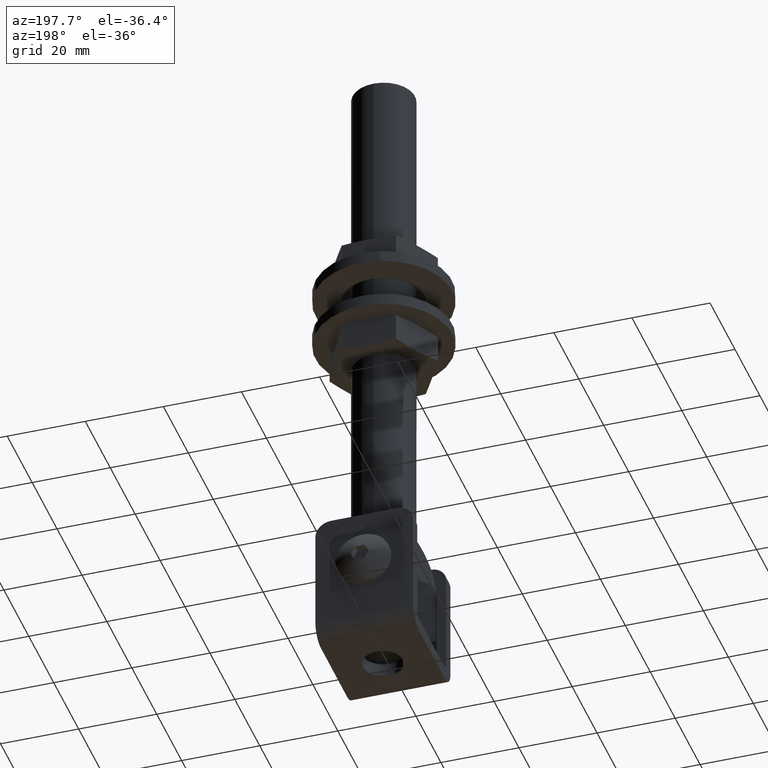
[diagram: clean part render]
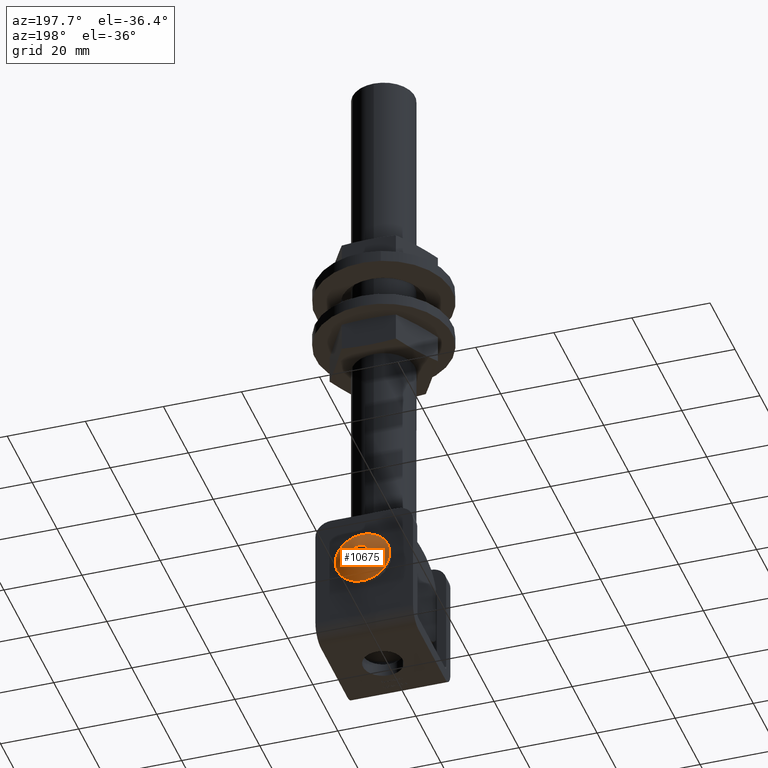
[diagram: same view with one face highlighted and labeled with its STEP entity id]
A machine part, auxiliary view. The second image highlights one B-rep face of the part: STEP entity #10675.
In plain terms, the highlighted spherical surface has radius 11.05 mm.
Its self-contained STEP definition (entity closure, byte-faithful):
#61 = CARTESIAN_POINT ( 'NONE',  ( -1.154700538379252350, 15.75597828364774067, -2.000000000000000000 ) ) ;
#476 = CARTESIAN_POINT ( 'NONE',  ( 1.154700538379251240, 15.75597828364774067, 2.000000000000001776 ) ) ;
#1130 = CARTESIAN_POINT ( 'NONE',  ( 0.000000000000000000, 4.950000000000002842, 0.000000000000000000 ) ) ;
#1547 = AXIS2_PLACEMENT_3D ( 'NONE', #2877, #12079, #12256 ) ;
#1617 = ORIENTED_EDGE ( 'NONE', *, *, #7392, .F. ) ;
#1966 = CIRCLE ( 'NONE', #11999, 10.86749741200796926 ) ;
#2010 = CARTESIAN_POINT ( 'NONE',  ( 0.000000000000000000, 13.49999999999999822, 0.000000000000000000 ) ) ;
#2491 = EDGE_LOOP ( 'NONE', ( #12122 ) ) ;
#2877 = CARTESIAN_POINT ( 'NONE',  ( -1.732050807568877637, 4.950000000000002842, 0.9999999999999995559 ) ) ;
#3056 = FACE_OUTER_BOUND ( 'NONE', #4974, .T. ) ;
#3228 = CARTESIAN_POINT ( 'NONE',  ( 1.154700538379250796, 15.75597828364774067, -2.000000000000000888 ) ) ;
#3642 = ORIENTED_EDGE ( 'NONE', *, *, #4127, .F. ) ;
#3908 = EDGE_CURVE ( 'NONE', #5907, #12906, #11746, .T. ) ;
#4127 = EDGE_CURVE ( 'NONE', #13528, #11460, #16472, .T. ) ;
#4194 = DIRECTION ( 'NONE',  ( -0.5000000000000001110, 9.737120518442653529E-15, -0.8660254037844384856 ) ) ;
#4286 = AXIS2_PLACEMENT_3D ( 'NONE', #15820, #6781, #4194 ) ;
#4408 = EDGE_CURVE ( 'NONE', #11460, #5907, #1966, .T. ) ;
#4578 = CARTESIAN_POINT ( 'NONE',  ( -1.732050807568878525, 4.950000000000002842, -1.000000000000000000 ) ) ;
#4805 = ORIENTED_EDGE ( 'NONE', *, *, #3908, .F. ) ;
#4851 = VERTEX_POINT ( 'NONE', #476 ) ;
#4897 = FACE_OUTER_BOUND ( 'NONE', #2491, .T. ) ;
#4912 = EDGE_CURVE ( 'NONE', #6798, #6798, #7699, .T. ) ;
#4974 = EDGE_LOOP ( 'NONE', ( #7940, #13784, #4805, #6940, #3642, #1617 ) ) ;
#5561 = CARTESIAN_POINT ( 'NONE',  ( 1.732050807568878303, 4.950000000000002842, 1.000000000000000888 ) ) ;
#5617 = DIRECTION ( 'NONE',  ( 0.5000000000000001110, 4.469497942891710192E-15, -0.8660254037844387076 ) ) ;
#5906 = DIRECTION ( 'NONE',  ( 0.8660254037844388186, 0.000000000000000000, 0.4999999999999998335 ) ) ;
#5907 = VERTEX_POINT ( 'NONE', #9455 ) ;
#5973 = EDGE_CURVE ( 'NONE', #12906, #4851, #15021, .T. ) ;
#6248 = CIRCLE ( 'NONE', #11184, 10.86749741200796748 ) ;
#6640 = CARTESIAN_POINT ( 'NONE',  ( 0.000000000000000000, 4.950000000000002842, -2.000000000000000000 ) ) ;
#6781 = DIRECTION ( 'NONE',  ( -0.8660254037844385966, -0.000000000000000000, 0.5000000000000002220 ) ) ;
#6798 = VERTEX_POINT ( 'NONE', #8294 ) ;
#6940 = ORIENTED_EDGE ( 'NONE', *, *, #4408, .F. ) ;
#7217 = DIRECTION ( 'NONE',  ( -0.4999999999999997780, 4.469497942891710192E-15, 0.8660254037844388186 ) ) ;
#7392 = EDGE_CURVE ( 'NONE', #15475, #13528, #7587, .T. ) ;
#7587 = CIRCLE ( 'NONE', #4286, 10.86749741200796926 ) ;
#7699 = CIRCLE ( 'NONE', #15304, 7.000000000000000000 ) ;
#7732 = DIRECTION ( 'NONE',  ( 0.000000000000000000, 0.000000000000000000, 1.000000000000000000 ) ) ;
#7940 = ORIENTED_EDGE ( 'NONE', *, *, #15857, .F. ) ;
#8294 = CARTESIAN_POINT ( 'NONE',  ( 0.000000000000000000, 13.49999999999999822, -7.000000000000000000 ) ) ;
#8518 = AXIS2_PLACEMENT_3D ( 'NONE', #6640, #13013, #15633 ) ;
#8757 = AXIS2_PLACEMENT_3D ( 'NONE', #1130, #7732, #16898 ) ;
#9380 = CARTESIAN_POINT ( 'NONE',  ( -3.755786496842901522E-16, 4.950000000000002842, 2.000000000000001332 ) ) ;
#9455 = CARTESIAN_POINT ( 'NONE',  ( -2.309401076758503812, 15.75597828364774067, -4.336808689942017736E-16 ) ) ;
#9788 = DIRECTION ( 'NONE',  ( 0.000000000000000000, 0.000000000000000000, -1.000000000000000000 ) ) ;
#10455 = CARTESIAN_POINT ( 'NONE',  ( -1.154700538379251462, 15.75597828364774067, 2.000000000000000888 ) ) ;
#10467 = AXIS2_PLACEMENT_3D ( 'NONE', #9380, #15947, #10679 ) ;
#10675 = ADVANCED_FACE ( 'NONE', ( #3056, #4897 ), #13538, .T. ) ;
#10679 = DIRECTION ( 'NONE',  ( 1.000000000000000000, 0.000000000000000000, 1.995311581648085083E-16 ) ) ;
#11184 = AXIS2_PLACEMENT_3D ( 'NONE', #5561, #14694, #5617 ) ;
#11460 = VERTEX_POINT ( 'NONE', #61 ) ;
#11746 = CIRCLE ( 'NONE', #1547, 10.86749741200796926 ) ;
#11999 = AXIS2_PLACEMENT_3D ( 'NONE', #4578, #5906, #7217 ) ;
#12079 = DIRECTION ( 'NONE',  ( 0.8660254037844388186, -0.000000000000000000, -0.4999999999999998335 ) ) ;
#12122 = ORIENTED_EDGE ( 'NONE', *, *, #4912, .F. ) ;
#12256 = DIRECTION ( 'NONE',  ( 0.4999999999999997780, 9.737120518442653529E-15, 0.8660254037844388186 ) ) ;
#12906 = VERTEX_POINT ( 'NONE', #10455 ) ;
#13013 = DIRECTION ( 'NONE',  ( 0.000000000000000000, 0.000000000000000000, 1.000000000000000000 ) ) ;
#13528 = VERTEX_POINT ( 'NONE', #3228 ) ;
#13538 = SPHERICAL_SURFACE ( 'NONE', #8757, 11.04999999999999538 ) ;
#13784 = ORIENTED_EDGE ( 'NONE', *, *, #5973, .F. ) ;
#14116 = CARTESIAN_POINT ( 'NONE',  ( 2.309401076758503812, 15.75597828364774067, 1.084202172485504434E-15 ) ) ;
#14694 = DIRECTION ( 'NONE',  ( -0.8660254037844384856, -0.000000000000000000, -0.5000000000000001110 ) ) ;
#15021 = CIRCLE ( 'NONE', #10467, 10.86749741200796748 ) ;
#15304 = AXIS2_PLACEMENT_3D ( 'NONE', #2010, #16351, #9788 ) ;
#15475 = VERTEX_POINT ( 'NONE', #14116 ) ;
#15633 = DIRECTION ( 'NONE',  ( -1.000000000000000000, 4.469497942891710192E-15, 0.000000000000000000 ) ) ;
#15820 = CARTESIAN_POINT ( 'NONE',  ( 1.732050807568876971, 4.950000000000002842, -1.000000000000000222 ) ) ;
#15857 = EDGE_CURVE ( 'NONE', #4851, #15475, #6248, .T. ) ;
#15947 = DIRECTION ( 'NONE',  ( 1.877893248421449529E-16, -0.000000000000000000, -1.000000000000000000 ) ) ;
#16351 = DIRECTION ( 'NONE',  ( -0.000000000000000000, -1.000000000000000000, -0.000000000000000000 ) ) ;
#16472 = CIRCLE ( 'NONE', #8518, 10.86749741200796748 ) ;
#16898 = DIRECTION ( 'NONE',  ( 1.000000000000000000, 0.000000000000000000, 0.000000000000000000 ) ) ;